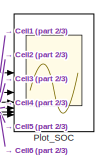
[diagram: root canvas - part 1/3, top right region]
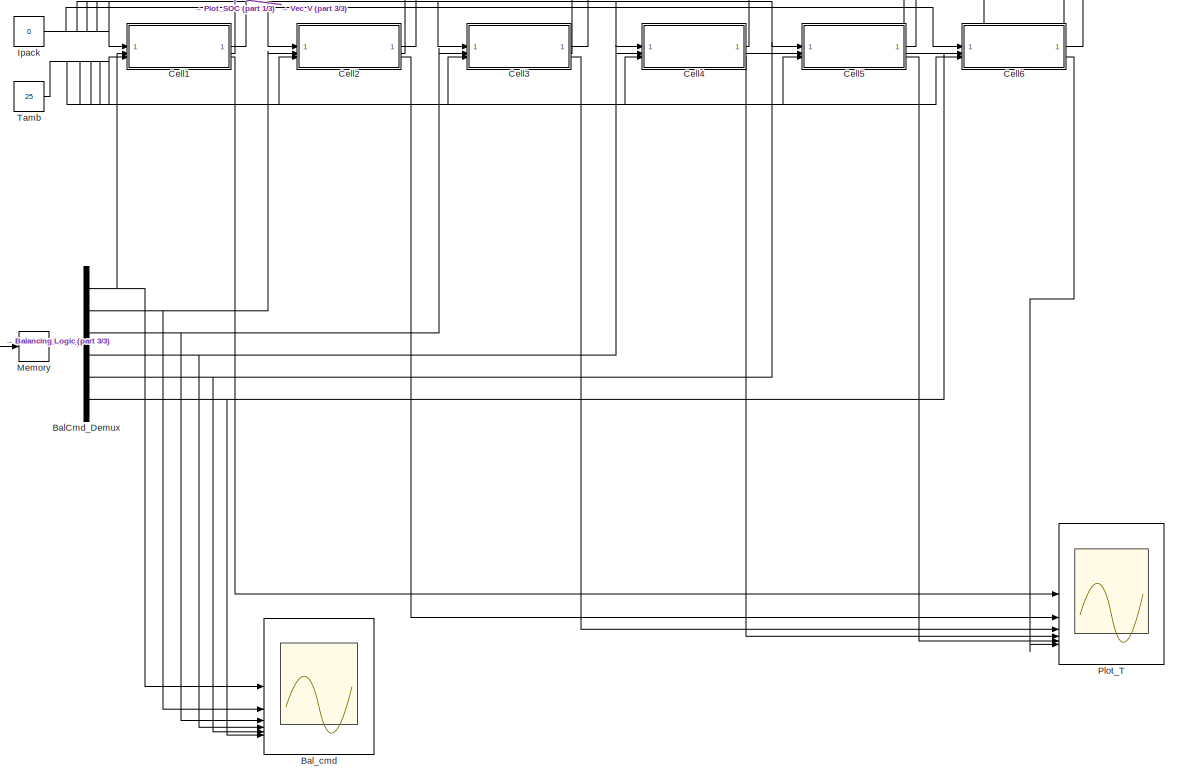
[diagram: root canvas - part 2/3, bottom center region]
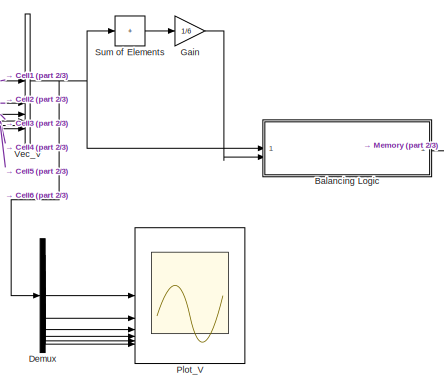
[diagram: root canvas - part 3/3, bottom left region]
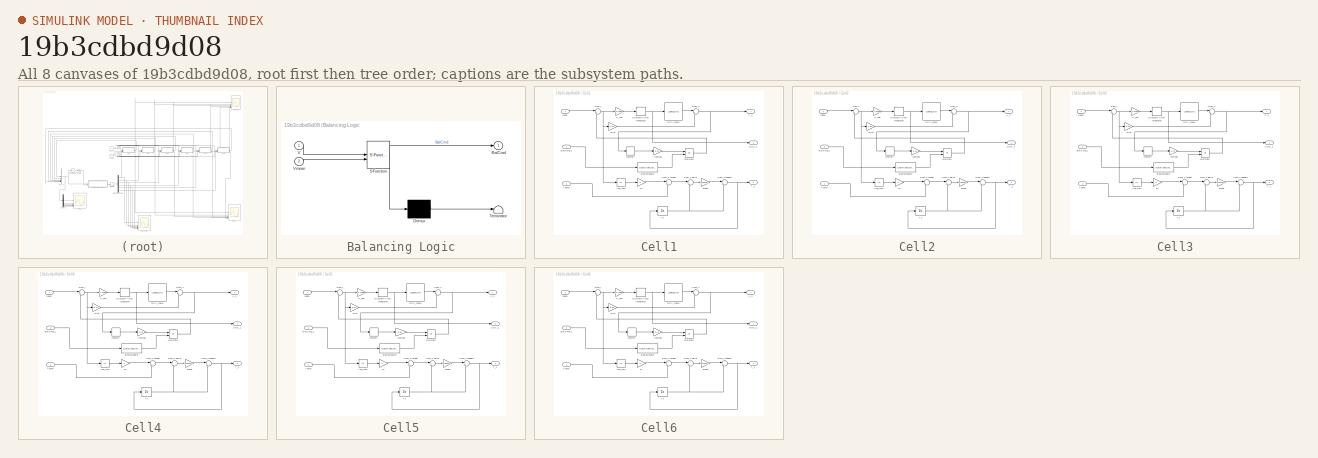
[diagram: thumbnail index - all 8 canvases of the model, root first then tree order]
MODEL slx_19b3cdbd9d08
KIND model
CONFIG AbsTol = auto
CONFIG EnableMultiTasking = off
CONFIG FixedStep = 0.01
CONFIG MaxStep = 0.1
CONFIG MinStep = auto
CONFIG RelTol = 1e-3
CONFIG SampleTimeConstraint = Unconstrained
CONFIG SolverName = FixedStepDiscrete
CONFIG StartTime = 0.0
CONFIG StopTime = 0.1
BLOCK [Demux] BalCmd_Demux
  Outputs = 6
BLOCK [Scope] Bal_cmd
  Floating = off
  NumInputPorts = 6
  ScopeSpecificationString = Simulink.scopes.TimeScopeBlockCfg('CurrentConfiguration', extmgr.ConfigurationSet(extmgr.Configuration('Core','General UI',true),extmgr.Configuration('Core','Source UI',true),extmgr.Configuration('Sources','WiredSimulink',true,'DataLoggingVariableName','ScopeData3'),extmgr.Configuration('Visuals','Time Domain',true,'PlotType','Stairs','SerializedDisplays',{struct('MinYLimReal','-0.125','MaxYLimRea...<+8200ch>
BLOCK [SubSystem] Balancing Logic
  ErrorFcn = Stateflow.Translate.translate
  PermitHierarchicalResolution = ExplicitOnly
  SFBlockType = MATLAB Function
  SystemSampleTime = 0.01
  TreatAsAtomicUnit = on
BLOCK [Demux] Balancing Logic/ Demux 
  Outputs = 1
BLOCK [S-Function] Balancing Logic/ SFunction 
  EnableBusSupport = on
  FunctionName = sf_sfun
  PortCounts = [2 2]
  SFcnIsStateOwnerBlock = off
  SFunctionDeploymentMode = off
  Tag = Stateflow S-Function 2
BLOCK [Terminator] Balancing Logic/ Terminator 
BLOCK [Outport] Balancing Logic/BalCmd
BLOCK [Inport] Balancing Logic/V
BLOCK [Inport] Balancing Logic/Vmean
  Port = 2
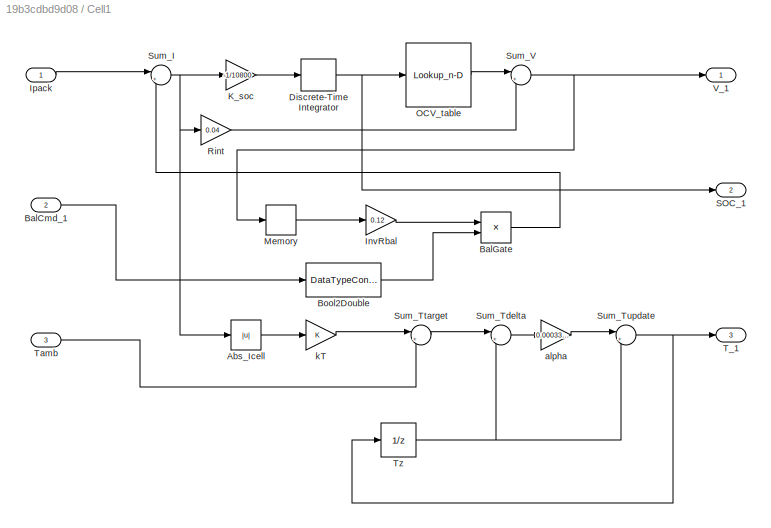
BLOCK [SubSystem] Cell1
BLOCK [Abs] Cell1/Abs_Icell
  SaturateOnIntegerOverflow = off
BLOCK [Inport] Cell1/BalCmd_1
  Port = 2
BLOCK [Product] Cell1/BalGate
BLOCK [DataTypeConversion] Cell1/Bool2Double
  OutDataTypeStr = double
  RndMeth = Floor
  SaturateOnIntegerOverflow = off
BLOCK [DiscreteIntegrator] Cell1/Discrete-Time Integrator
  ICPrevOutput = DiscIntNeverNeededParam
  ICPrevScaledInput = DiscIntNeverNeededParam
  InitialCondition = 0.82
  InitialConditionSetting = Auto
  LimitOutput = on
  LowerSaturationLimit = 0
  SampleTime = 0.01
  UpperSaturationLimit = 1
  gainval = 1
BLOCK [Gain] Cell1/InvRbal
  Gain = 0.12
BLOCK [Inport] Cell1/Ipack
BLOCK [Gain] Cell1/K_soc
  Gain = -1/10800
BLOCK [Memory] Cell1/Memory
  InitialCondition = 3.8
BLOCK [Lookup_n-D] Cell1/OCV_table
  BreakpointsForDimension1 = [0 0.1 0.2 0.4 0.6 0.8 0.9 1]
  InputPortMap = u0
  InternalRulePriority = Speed
  NumberOfTableDimensions = 1
  RndMeth = Simplest
  Table = [3.0 3.4 3.55 3.75 3.90 4.00 4.08 4.20]
BLOCK [Gain] Cell1/Rint
  Gain = 0.04
BLOCK [Outport] Cell1/SOC_1
  Port = 2
BLOCK [Sum] Cell1/Sum_I
  Inputs = |++
BLOCK [Sum] Cell1/Sum_Tdelta
  Inputs = |+-
BLOCK [Sum] Cell1/Sum_Ttarget
  Inputs = |++
BLOCK [Sum] Cell1/Sum_Tupdate
  Inputs = |++
BLOCK [Sum] Cell1/Sum_V
  Inputs = |+-
BLOCK [Outport] Cell1/T_1
  Port = 3
BLOCK [Inport] Cell1/Tamb
  Port = 3
BLOCK [UnitDelay] Cell1/Tz
  HasFrameUpgradeWarning = on
  InitialCondition = 25
  SampleTime = -1
BLOCK [Outport] Cell1/V_1
BLOCK [Gain] Cell1/alpha
  Gain = 0.0003333
BLOCK [Gain] Cell1/kT
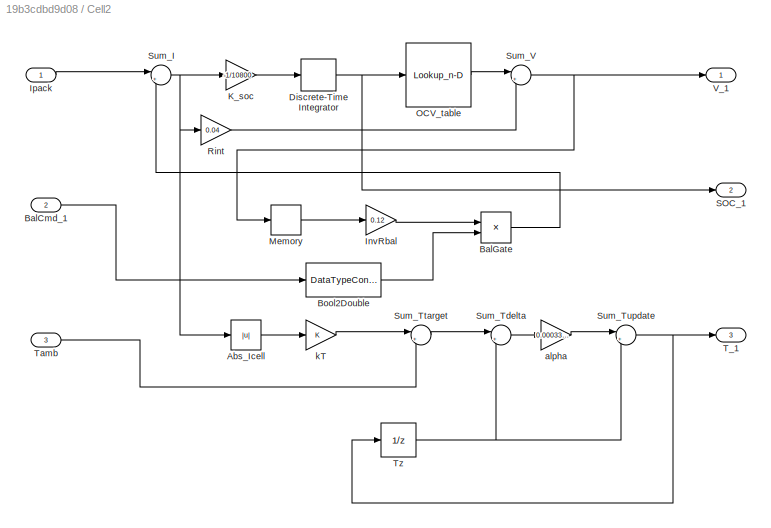
BLOCK [SubSystem] Cell2
BLOCK [Abs] Cell2/Abs_Icell
  SaturateOnIntegerOverflow = off
BLOCK [Inport] Cell2/BalCmd_1
  Port = 2
BLOCK [Product] Cell2/BalGate
BLOCK [DataTypeConversion] Cell2/Bool2Double
  OutDataTypeStr = double
  RndMeth = Floor
  SaturateOnIntegerOverflow = off
BLOCK [DiscreteIntegrator] Cell2/Discrete-Time Integrator
  ICPrevOutput = DiscIntNeverNeededParam
  ICPrevScaledInput = DiscIntNeverNeededParam
  InitialCondition = 0.76
  InitialConditionSetting = Auto
  LimitOutput = on
  LowerSaturationLimit = 0
  SampleTime = 0.01
  UpperSaturationLimit = 1
  gainval = 1
BLOCK [Gain] Cell2/InvRbal
  Gain = 0.12
BLOCK [Inport] Cell2/Ipack
BLOCK [Gain] Cell2/K_soc
  Gain = -1/10800
BLOCK [Memory] Cell2/Memory
  InitialCondition = 3.8
BLOCK [Lookup_n-D] Cell2/OCV_table
  BreakpointsForDimension1 = [0 0.1 0.2 0.4 0.6 0.8 0.9 1]
  InputPortMap = u0
  InternalRulePriority = Speed
  NumberOfTableDimensions = 1
  RndMeth = Simplest
  Table = [3.0 3.4 3.55 3.75 3.90 4.00 4.08 4.20]
BLOCK [Gain] Cell2/Rint
  Gain = 0.04
BLOCK [Outport] Cell2/SOC_1
  Port = 2
BLOCK [Sum] Cell2/Sum_I
  Inputs = |++
BLOCK [Sum] Cell2/Sum_Tdelta
  Inputs = |+-
BLOCK [Sum] Cell2/Sum_Ttarget
  Inputs = |++
BLOCK [Sum] Cell2/Sum_Tupdate
  Inputs = |++
BLOCK [Sum] Cell2/Sum_V
  Inputs = |+-
BLOCK [Outport] Cell2/T_1
  Port = 3
BLOCK [Inport] Cell2/Tamb
  Port = 3
BLOCK [UnitDelay] Cell2/Tz
  HasFrameUpgradeWarning = on
  InitialCondition = 25
  SampleTime = -1
BLOCK [Outport] Cell2/V_1
BLOCK [Gain] Cell2/alpha
  Gain = 0.0003333
BLOCK [Gain] Cell2/kT
BLOCK [SubSystem] Cell3
BLOCK [Abs] Cell3/Abs_Icell
  SaturateOnIntegerOverflow = off
BLOCK [Inport] Cell3/BalCmd_1
  Port = 2
BLOCK [Product] Cell3/BalGate
BLOCK [DataTypeConversion] Cell3/Bool2Double
  OutDataTypeStr = double
  RndMeth = Floor
  SaturateOnIntegerOverflow = off
BLOCK [DiscreteIntegrator] Cell3/Discrete-Time Integrator
  ICPrevOutput = DiscIntNeverNeededParam
  ICPrevScaledInput = DiscIntNeverNeededParam
  InitialCondition = 0.80
  InitialConditionSetting = Auto
  LimitOutput = on
  LowerSaturationLimit = 0
  SampleTime = 0.01
  UpperSaturationLimit = 1
  gainval = 1
BLOCK [Gain] Cell3/InvRbal
  Gain = 0.12
BLOCK [Inport] Cell3/Ipack
BLOCK [Gain] Cell3/K_soc
  Gain = -1/10800
BLOCK [Memory] Cell3/Memory
  InitialCondition = 3.8
BLOCK [Lookup_n-D] Cell3/OCV_table
  BreakpointsForDimension1 = [0 0.1 0.2 0.4 0.6 0.8 0.9 1]
  InputPortMap = u0
  InternalRulePriority = Speed
  NumberOfTableDimensions = 1
  RndMeth = Simplest
  Table = [3.0 3.4 3.55 3.75 3.90 4.00 4.08 4.20]
BLOCK [Gain] Cell3/Rint
  Gain = 0.04
BLOCK [Outport] Cell3/SOC_1
  Port = 2
BLOCK [Sum] Cell3/Sum_I
  Inputs = |++
BLOCK [Sum] Cell3/Sum_Tdelta
  Inputs = |+-
BLOCK [Sum] Cell3/Sum_Ttarget
  Inputs = |++
BLOCK [Sum] Cell3/Sum_Tupdate
  Inputs = |++
BLOCK [Sum] Cell3/Sum_V
  Inputs = |+-
BLOCK [Outport] Cell3/T_1
  Port = 3
BLOCK [Inport] Cell3/Tamb
  Port = 3
BLOCK [UnitDelay] Cell3/Tz
  HasFrameUpgradeWarning = on
  InitialCondition = 25
  SampleTime = -1
BLOCK [Outport] Cell3/V_1
BLOCK [Gain] Cell3/alpha
  Gain = 0.0003333
BLOCK [Gain] Cell3/kT
BLOCK [SubSystem] Cell4
BLOCK [Abs] Cell4/Abs_Icell
  SaturateOnIntegerOverflow = off
BLOCK [Inport] Cell4/BalCmd_1
  Port = 2
BLOCK [Product] Cell4/BalGate
BLOCK [DataTypeConversion] Cell4/Bool2Double
  OutDataTypeStr = double
  RndMeth = Floor
  SaturateOnIntegerOverflow = off
BLOCK [DiscreteIntegrator] Cell4/Discrete-Time Integrator
  ICPrevOutput = DiscIntNeverNeededParam
  ICPrevScaledInput = DiscIntNeverNeededParam
  InitialCondition = 0.79
  InitialConditionSetting = Auto
  LimitOutput = on
  LowerSaturationLimit = 0
  SampleTime = 0.01
  UpperSaturationLimit = 1
  gainval = 1
BLOCK [Gain] Cell4/InvRbal
  Gain = 0.12
BLOCK [Inport] Cell4/Ipack
BLOCK [Gain] Cell4/K_soc
  Gain = -1/10800
BLOCK [Memory] Cell4/Memory
  InitialCondition = 3.8
BLOCK [Lookup_n-D] Cell4/OCV_table
  BreakpointsForDimension1 = [0 0.1 0.2 0.4 0.6 0.8 0.9 1]
  InputPortMap = u0
  InternalRulePriority = Speed
  NumberOfTableDimensions = 1
  RndMeth = Simplest
  Table = [3.0 3.4 3.55 3.75 3.90 4.00 4.08 4.20]
BLOCK [Gain] Cell4/Rint
  Gain = 0.04
BLOCK [Outport] Cell4/SOC_1
  Port = 2
BLOCK [Sum] Cell4/Sum_I
  Inputs = |++
BLOCK [Sum] Cell4/Sum_Tdelta
  Inputs = |+-
BLOCK [Sum] Cell4/Sum_Ttarget
  Inputs = |++
BLOCK [Sum] Cell4/Sum_Tupdate
  Inputs = |++
BLOCK [Sum] Cell4/Sum_V
  Inputs = |+-
BLOCK [Outport] Cell4/T_1
  Port = 3
BLOCK [Inport] Cell4/Tamb
  Port = 3
BLOCK [UnitDelay] Cell4/Tz
  HasFrameUpgradeWarning = on
  InitialCondition = 25
  SampleTime = -1
BLOCK [Outport] Cell4/V_1
BLOCK [Gain] Cell4/alpha
  Gain = 0.0003333
BLOCK [Gain] Cell4/kT
BLOCK [SubSystem] Cell5
BLOCK [Abs] Cell5/Abs_Icell
  SaturateOnIntegerOverflow = off
BLOCK [Inport] Cell5/BalCmd_1
  Port = 2
BLOCK [Product] Cell5/BalGate
BLOCK [DataTypeConversion] Cell5/Bool2Double
  OutDataTypeStr = double
  RndMeth = Floor
  SaturateOnIntegerOverflow = off
BLOCK [DiscreteIntegrator] Cell5/Discrete-Time Integrator
  ICPrevOutput = DiscIntNeverNeededParam
  ICPrevScaledInput = DiscIntNeverNeededParam
  InitialCondition = 0.83
  InitialConditionSetting = Auto
  LimitOutput = on
  LowerSaturationLimit = 0
  SampleTime = 0.01
  UpperSaturationLimit = 1
  gainval = 1
BLOCK [Gain] Cell5/InvRbal
  Gain = 0.12
BLOCK [Inport] Cell5/Ipack
BLOCK [Gain] Cell5/K_soc
  Gain = -1/10800
BLOCK [Memory] Cell5/Memory
  InitialCondition = 3.8
BLOCK [Lookup_n-D] Cell5/OCV_table
  BreakpointsForDimension1 = [0 0.1 0.2 0.4 0.6 0.8 0.9 1]
  InputPortMap = u0
  InternalRulePriority = Speed
  NumberOfTableDimensions = 1
  RndMeth = Simplest
  Table = [3.0 3.4 3.55 3.75 3.90 4.00 4.08 4.20]
BLOCK [Gain] Cell5/Rint
  Gain = 0.04
BLOCK [Outport] Cell5/SOC_1
  Port = 2
BLOCK [Sum] Cell5/Sum_I
  Inputs = |++
BLOCK [Sum] Cell5/Sum_Tdelta
  Inputs = |+-
BLOCK [Sum] Cell5/Sum_Ttarget
  Inputs = |++
BLOCK [Sum] Cell5/Sum_Tupdate
  Inputs = |++
BLOCK [Sum] Cell5/Sum_V
  Inputs = |+-
BLOCK [Outport] Cell5/T_1
  Port = 3
BLOCK [Inport] Cell5/Tamb
  Port = 3
BLOCK [UnitDelay] Cell5/Tz
  HasFrameUpgradeWarning = on
  InitialCondition = 25
  SampleTime = -1
BLOCK [Outport] Cell5/V_1
BLOCK [Gain] Cell5/alpha
  Gain = 0.0003333
BLOCK [Gain] Cell5/kT
BLOCK [SubSystem] Cell6
BLOCK [Abs] Cell6/Abs_Icell
  SaturateOnIntegerOverflow = off
BLOCK [Inport] Cell6/BalCmd_1
  Port = 2
BLOCK [Product] Cell6/BalGate
BLOCK [DataTypeConversion] Cell6/Bool2Double
  OutDataTypeStr = double
  RndMeth = Floor
  SaturateOnIntegerOverflow = off
BLOCK [DiscreteIntegrator] Cell6/Discrete-Time Integrator
  ICPrevOutput = DiscIntNeverNeededParam
  ICPrevScaledInput = DiscIntNeverNeededParam
  InitialCondition = 0.78
  InitialConditionSetting = Auto
  LimitOutput = on
  LowerSaturationLimit = 0
  SampleTime = 0.01
  UpperSaturationLimit = 1
  gainval = 1
BLOCK [Gain] Cell6/InvRbal
  Gain = 0.12
BLOCK [Inport] Cell6/Ipack
BLOCK [Gain] Cell6/K_soc
  Gain = -1/10800
BLOCK [Memory] Cell6/Memory
  InitialCondition = 3.8
BLOCK [Lookup_n-D] Cell6/OCV_table
  BreakpointsForDimension1 = [0 0.1 0.2 0.4 0.6 0.8 0.9 1]
  InputPortMap = u0
  InternalRulePriority = Speed
  NumberOfTableDimensions = 1
  RndMeth = Simplest
  Table = [3.0 3.4 3.55 3.75 3.90 4.00 4.08 4.20]
BLOCK [Gain] Cell6/Rint
  Gain = 0.04
BLOCK [Outport] Cell6/SOC_1
  Port = 2
BLOCK [Sum] Cell6/Sum_I
  Inputs = |++
BLOCK [Sum] Cell6/Sum_Tdelta
  Inputs = |+-
BLOCK [Sum] Cell6/Sum_Ttarget
  Inputs = |++
BLOCK [Sum] Cell6/Sum_Tupdate
  Inputs = |++
BLOCK [Sum] Cell6/Sum_V
  Inputs = |+-
BLOCK [Outport] Cell6/T_1
  Port = 3
BLOCK [Inport] Cell6/Tamb
  Port = 3
BLOCK [UnitDelay] Cell6/Tz
  HasFrameUpgradeWarning = on
  InitialCondition = 25
  SampleTime = -1
BLOCK [Outport] Cell6/V_1
BLOCK [Gain] Cell6/alpha
  Gain = 0.0003333
BLOCK [Gain] Cell6/kT
BLOCK [Demux] Demux
  Outputs = 6
BLOCK [Gain] Gain
  Gain = 1/6
BLOCK [Constant] Ipack
  Value = 0
BLOCK [Memory] Memory
  InheritSampleTime = on
BLOCK [Scope] Plot_SOC
  Floating = off
  NumInputPorts = 6
  ScopeSpecificationString = Simulink.scopes.TimeScopeBlockCfg('CurrentConfiguration', extmgr.ConfigurationSet(extmgr.Configuration('Core','General UI',true),extmgr.Configuration('Core','Source UI',true),extmgr.Configuration('Sources','WiredSimulink',true,'DataLoggingVariableName','ScopeData2'),extmgr.Configuration('Visuals','Time Domain',true,'SerializedDisplays',{struct('MinYLimReal','0.8199955','MaxYLimReal','0.8200005','Y...<+5436ch>
BLOCK [Scope] Plot_T
  Floating = off
  NumInputPorts = 6
  ScopeSpecificationString = Simulink.scopes.TimeScopeBlockCfg('CurrentConfiguration', extmgr.ConfigurationSet(extmgr.Configuration('Core','General UI',true),extmgr.Configuration('Core','Source UI',true),extmgr.Configuration('Sources','WiredSimulink',true,'DataLoggingVariableName','ScopeData1'),extmgr.Configuration('Visuals','Time Domain',true,'SerializedDisplays',{struct('MinYLimReal','24.9998','MaxYLimReal','25.0018','YLabe...<+5575ch>
BLOCK [Scope] Plot_V
  Floating = off
  NumInputPorts = 6
  ScopeSpecificationString = Simulink.scopes.TimeScopeBlockCfg('CurrentConfiguration', extmgr.ConfigurationSet(extmgr.Configuration('Core','General UI',true),extmgr.Configuration('Core','Source UI',true),extmgr.Configuration('Sources','WiredSimulink',true),extmgr.Configuration('Visuals','Time Domain',true,'SerializedDisplays',{struct('MinYLimReal','3.99431','MaxYLimReal','4.01841','YLabelReal','','MinYLimMag','3.99431','MaxYL...<+6638ch>
BLOCK [Sum] Sum of Elements
  IconShape = rectangular
  Inputs = +
BLOCK [Constant] Tamb
  Value = 25
BLOCK [Concatenate] Vec_V
  NumInputs = 6
NET BalCmd_Demux:1 -> Bal_cmd:1, Cell1:2
NET BalCmd_Demux:2 -> Bal_cmd:2, Cell2:2
NET BalCmd_Demux:3 -> Bal_cmd:3, Cell3:2
NET BalCmd_Demux:4 -> Bal_cmd:4, Cell4:2
NET BalCmd_Demux:5 -> Bal_cmd:5, Cell5:2
NET BalCmd_Demux:6 -> Bal_cmd:6, Cell6:2
LINE Balancing Logic:1 -> Memory:1
LINE Cell1/Abs_Icell:1 -> Cell1/kT:1
LINE Cell1/BalCmd_1:1 -> Cell1/Bool2Double:1
LINE Cell1/BalGate:1 -> Cell1/Sum_I:2
LINE Cell1/Bool2Double:1 -> Cell1/BalGate:2
NET Cell1/Discrete-Time Integrator:1 -> Cell1/OCV_table:1, Cell1/SOC_1:1
LINE Cell1/InvRbal:1 -> Cell1/BalGate:1
LINE Cell1/Ipack:1 -> Cell1/Sum_I:1
LINE Cell1/K_soc:1 -> Cell1/Discrete-Time Integrator:1
LINE Cell1/Memory:1 -> Cell1/InvRbal:1
LINE Cell1/OCV_table:1 -> Cell1/Sum_V:1
LINE Cell1/Rint:1 -> Cell1/Sum_V:2
NET Cell1/Sum_I:1 -> Cell1/Abs_Icell:1, Cell1/K_soc:1, Cell1/Rint:1
LINE Cell1/Sum_Tdelta:1 -> Cell1/alpha:1
LINE Cell1/Sum_Ttarget:1 -> Cell1/Sum_Tdelta:1
NET Cell1/Sum_Tupdate:1 -> Cell1/T_1:1, Cell1/Tz:1
NET Cell1/Sum_V:1 -> Cell1/Memory:1, Cell1/V_1:1
LINE Cell1/Tamb:1 -> Cell1/Sum_Ttarget:2
NET Cell1/Tz:1 -> Cell1/Sum_Tdelta:2, Cell1/Sum_Tupdate:2
LINE Cell1/alpha:1 -> Cell1/Sum_Tupdate:1
LINE Cell1/kT:1 -> Cell1/Sum_Ttarget:1
LINE Cell1:1 -> Vec_V:1
LINE Cell1:2 -> Plot_SOC:1
LINE Cell1:3 -> Plot_T:1
LINE Cell2/Abs_Icell:1 -> Cell2/kT:1
LINE Cell2/BalCmd_1:1 -> Cell2/Bool2Double:1
LINE Cell2/BalGate:1 -> Cell2/Sum_I:2
LINE Cell2/Bool2Double:1 -> Cell2/BalGate:2
NET Cell2/Discrete-Time Integrator:1 -> Cell2/OCV_table:1, Cell2/SOC_1:1
LINE Cell2/InvRbal:1 -> Cell2/BalGate:1
LINE Cell2/Ipack:1 -> Cell2/Sum_I:1
LINE Cell2/K_soc:1 -> Cell2/Discrete-Time Integrator:1
LINE Cell2/Memory:1 -> Cell2/InvRbal:1
LINE Cell2/OCV_table:1 -> Cell2/Sum_V:1
LINE Cell2/Rint:1 -> Cell2/Sum_V:2
NET Cell2/Sum_I:1 -> Cell2/Abs_Icell:1, Cell2/K_soc:1, Cell2/Rint:1
LINE Cell2/Sum_Tdelta:1 -> Cell2/alpha:1
LINE Cell2/Sum_Ttarget:1 -> Cell2/Sum_Tdelta:1
NET Cell2/Sum_Tupdate:1 -> Cell2/T_1:1, Cell2/Tz:1
NET Cell2/Sum_V:1 -> Cell2/Memory:1, Cell2/V_1:1
LINE Cell2/Tamb:1 -> Cell2/Sum_Ttarget:2
NET Cell2/Tz:1 -> Cell2/Sum_Tdelta:2, Cell2/Sum_Tupdate:2
LINE Cell2/alpha:1 -> Cell2/Sum_Tupdate:1
LINE Cell2/kT:1 -> Cell2/Sum_Ttarget:1
LINE Cell2:1 -> Vec_V:2
LINE Cell2:2 -> Plot_SOC:2
LINE Cell2:3 -> Plot_T:2
LINE Cell3/Abs_Icell:1 -> Cell3/kT:1
LINE Cell3/BalCmd_1:1 -> Cell3/Bool2Double:1
LINE Cell3/BalGate:1 -> Cell3/Sum_I:2
LINE Cell3/Bool2Double:1 -> Cell3/BalGate:2
NET Cell3/Discrete-Time Integrator:1 -> Cell3/OCV_table:1, Cell3/SOC_1:1
LINE Cell3/InvRbal:1 -> Cell3/BalGate:1
LINE Cell3/Ipack:1 -> Cell3/Sum_I:1
LINE Cell3/K_soc:1 -> Cell3/Discrete-Time Integrator:1
LINE Cell3/Memory:1 -> Cell3/InvRbal:1
LINE Cell3/OCV_table:1 -> Cell3/Sum_V:1
LINE Cell3/Rint:1 -> Cell3/Sum_V:2
NET Cell3/Sum_I:1 -> Cell3/Abs_Icell:1, Cell3/K_soc:1, Cell3/Rint:1
LINE Cell3/Sum_Tdelta:1 -> Cell3/alpha:1
LINE Cell3/Sum_Ttarget:1 -> Cell3/Sum_Tdelta:1
NET Cell3/Sum_Tupdate:1 -> Cell3/T_1:1, Cell3/Tz:1
NET Cell3/Sum_V:1 -> Cell3/Memory:1, Cell3/V_1:1
LINE Cell3/Tamb:1 -> Cell3/Sum_Ttarget:2
NET Cell3/Tz:1 -> Cell3/Sum_Tdelta:2, Cell3/Sum_Tupdate:2
LINE Cell3/alpha:1 -> Cell3/Sum_Tupdate:1
LINE Cell3/kT:1 -> Cell3/Sum_Ttarget:1
LINE Cell3:1 -> Vec_V:3
LINE Cell3:2 -> Plot_SOC:3
LINE Cell3:3 -> Plot_T:3
LINE Cell4/Abs_Icell:1 -> Cell4/kT:1
LINE Cell4/BalCmd_1:1 -> Cell4/Bool2Double:1
LINE Cell4/BalGate:1 -> Cell4/Sum_I:2
LINE Cell4/Bool2Double:1 -> Cell4/BalGate:2
NET Cell4/Discrete-Time Integrator:1 -> Cell4/OCV_table:1, Cell4/SOC_1:1
LINE Cell4/InvRbal:1 -> Cell4/BalGate:1
LINE Cell4/Ipack:1 -> Cell4/Sum_I:1
LINE Cell4/K_soc:1 -> Cell4/Discrete-Time Integrator:1
LINE Cell4/Memory:1 -> Cell4/InvRbal:1
LINE Cell4/OCV_table:1 -> Cell4/Sum_V:1
LINE Cell4/Rint:1 -> Cell4/Sum_V:2
NET Cell4/Sum_I:1 -> Cell4/Abs_Icell:1, Cell4/K_soc:1, Cell4/Rint:1
LINE Cell4/Sum_Tdelta:1 -> Cell4/alpha:1
LINE Cell4/Sum_Ttarget:1 -> Cell4/Sum_Tdelta:1
NET Cell4/Sum_Tupdate:1 -> Cell4/T_1:1, Cell4/Tz:1
NET Cell4/Sum_V:1 -> Cell4/Memory:1, Cell4/V_1:1
LINE Cell4/Tamb:1 -> Cell4/Sum_Ttarget:2
NET Cell4/Tz:1 -> Cell4/Sum_Tdelta:2, Cell4/Sum_Tupdate:2
LINE Cell4/alpha:1 -> Cell4/Sum_Tupdate:1
LINE Cell4/kT:1 -> Cell4/Sum_Ttarget:1
LINE Cell4:1 -> Vec_V:4
LINE Cell4:2 -> Plot_SOC:4
LINE Cell4:3 -> Plot_T:4
LINE Cell5/Abs_Icell:1 -> Cell5/kT:1
LINE Cell5/BalCmd_1:1 -> Cell5/Bool2Double:1
LINE Cell5/BalGate:1 -> Cell5/Sum_I:2
LINE Cell5/Bool2Double:1 -> Cell5/BalGate:2
NET Cell5/Discrete-Time Integrator:1 -> Cell5/OCV_table:1, Cell5/SOC_1:1
LINE Cell5/InvRbal:1 -> Cell5/BalGate:1
LINE Cell5/Ipack:1 -> Cell5/Sum_I:1
LINE Cell5/K_soc:1 -> Cell5/Discrete-Time Integrator:1
LINE Cell5/Memory:1 -> Cell5/InvRbal:1
LINE Cell5/OCV_table:1 -> Cell5/Sum_V:1
LINE Cell5/Rint:1 -> Cell5/Sum_V:2
NET Cell5/Sum_I:1 -> Cell5/Abs_Icell:1, Cell5/K_soc:1, Cell5/Rint:1
LINE Cell5/Sum_Tdelta:1 -> Cell5/alpha:1
LINE Cell5/Sum_Ttarget:1 -> Cell5/Sum_Tdelta:1
NET Cell5/Sum_Tupdate:1 -> Cell5/T_1:1, Cell5/Tz:1
NET Cell5/Sum_V:1 -> Cell5/Memory:1, Cell5/V_1:1
LINE Cell5/Tamb:1 -> Cell5/Sum_Ttarget:2
NET Cell5/Tz:1 -> Cell5/Sum_Tdelta:2, Cell5/Sum_Tupdate:2
LINE Cell5/alpha:1 -> Cell5/Sum_Tupdate:1
LINE Cell5/kT:1 -> Cell5/Sum_Ttarget:1
LINE Cell5:1 -> Vec_V:5
LINE Cell5:2 -> Plot_SOC:5
LINE Cell5:3 -> Plot_T:5
LINE Cell6/Abs_Icell:1 -> Cell6/kT:1
LINE Cell6/BalCmd_1:1 -> Cell6/Bool2Double:1
LINE Cell6/BalGate:1 -> Cell6/Sum_I:2
LINE Cell6/Bool2Double:1 -> Cell6/BalGate:2
NET Cell6/Discrete-Time Integrator:1 -> Cell6/OCV_table:1, Cell6/SOC_1:1
LINE Cell6/InvRbal:1 -> Cell6/BalGate:1
LINE Cell6/Ipack:1 -> Cell6/Sum_I:1
LINE Cell6/K_soc:1 -> Cell6/Discrete-Time Integrator:1
LINE Cell6/Memory:1 -> Cell6/InvRbal:1
LINE Cell6/OCV_table:1 -> Cell6/Sum_V:1
LINE Cell6/Rint:1 -> Cell6/Sum_V:2
NET Cell6/Sum_I:1 -> Cell6/Abs_Icell:1, Cell6/K_soc:1, Cell6/Rint:1
LINE Cell6/Sum_Tdelta:1 -> Cell6/alpha:1
LINE Cell6/Sum_Ttarget:1 -> Cell6/Sum_Tdelta:1
NET Cell6/Sum_Tupdate:1 -> Cell6/T_1:1, Cell6/Tz:1
NET Cell6/Sum_V:1 -> Cell6/Memory:1, Cell6/V_1:1
LINE Cell6/Tamb:1 -> Cell6/Sum_Ttarget:2
NET Cell6/Tz:1 -> Cell6/Sum_Tdelta:2, Cell6/Sum_Tupdate:2
LINE Cell6/alpha:1 -> Cell6/Sum_Tupdate:1
LINE Cell6/kT:1 -> Cell6/Sum_Ttarget:1
LINE Cell6:1 -> Vec_V:6
LINE Cell6:2 -> Plot_SOC:6
LINE Cell6:3 -> Plot_T:6
LINE Demux:1 -> Plot_V:1
LINE Demux:2 -> Plot_V:2
LINE Demux:3 -> Plot_V:3
LINE Demux:4 -> Plot_V:4
LINE Demux:5 -> Plot_V:5
LINE Demux:6 -> Plot_V:6
LINE Gain:1 -> Balancing Logic:2
NET Ipack:1 -> Cell1:1, Cell2:1, Cell3:1, Cell4:1, Cell5:1, Cell6:1
LINE Memory:1 -> BalCmd_Demux:1
LINE Sum of Elements:1 -> Gain:1
NET Tamb:1 -> Cell1:3, Cell2:3, Cell3:3, Cell4:3, Cell5:3, Cell6:3
NET Vec_V:1 -> Balancing Logic:1, Demux:1, Sum of Elements:1
note: NET lines group one-source signal fan-out (src -> all destinations, sorted); 1:1 wires keep LINE
CHART Balancing Logic states=1 transitions=1
  STATE_LABEL 'eML_blk_kernel()'
  STATE_LABEL 'SCRIPT:\nfunction BalCmd = BalancingLogic(V, Vmean)\n% V: 1x6 vector of cell voltages\n% Vmean: scalar mean (guard if vector)\nVmean = Vmean(1);\n\n% Hysteresis thresholds\ndV_on  = 0.003;   % 3 mV to turn ON\ndV_off = 0.001;   % 1 mV to turn OFF (smaller than ON)\n\npersistent state\nif isempty(state)\n    state = false(size(V));  % one state bit per cell\nend\n\nfor i = 1:numel(V)\n    if state(i)\n        % kee...<+210ch>'
CHART  states=0 transitions=0
